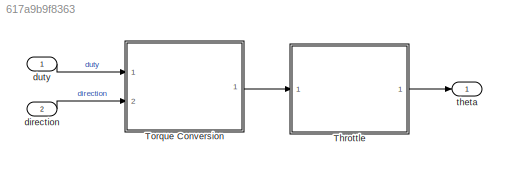
MODEL slx_617a9b9f8363
KIND model
CONFIG AbsTol = auto
CONFIG EnableMultiTasking = on
CONFIG FixedStep = auto
CONFIG MaxStep = 0.1
CONFIG MinStep = auto
CONFIG PreLoadFcn = etc_plant_data;\nFs = 1000;
CONFIG RelTol = 1e-3
CONFIG SampleTimeConstraint = Unconstrained
CONFIG Solver = ode45
CONFIG SolverName = ode45
CONFIG StartTime = 0.0
CONFIG StopTime = 20
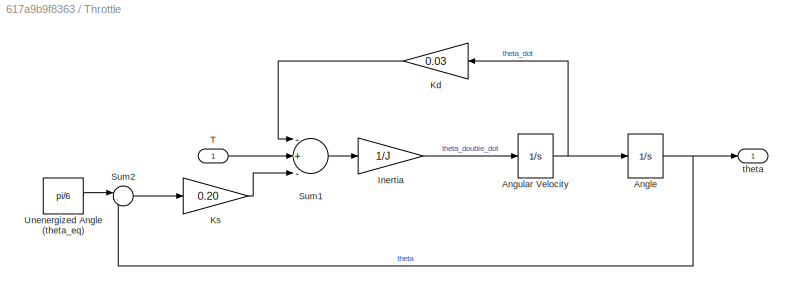
BLOCK [SubSystem] Throttle
  Ports = [1, 1]
  RequestExecContextInheritance = off
BLOCK [Integrator] Throttle/Angle
  AttributesFormatString = Initial condition: %<InitialCondition>\n%<LowerSaturationLimit> <= theta <= %<UpperSaturationLimit>
  InitialCondition = pi/6
  LimitOutput = on
  LowerSaturationLimit = 0
  Ports = [1, 1]
  UpperSaturationLimit = pi/2
BLOCK [Integrator] Throttle/Angular Velocity
  AttributesFormatString = Initial condition: %<InitialCondition>
  Ports = [1, 1]
BLOCK [Gain] Throttle/Inertia
  Gain = 1/J
BLOCK [Gain] Throttle/Kd
  Gain = 0.03
BLOCK [Gain] Throttle/Ks
  Gain = 0.20
BLOCK [Sum] Throttle/Sum1
  InputSameDT = off
  Inputs = -+-
  OutDataTypeStr = Inherit: Inherit via internal rule
  Ports = [3, 1]
BLOCK [Sum] Throttle/Sum2
  IconShape = round
  InputSameDT = off
  Inputs = |-+
  OutDataTypeStr = Inherit: Inherit via internal rule
  Ports = [2, 1]
BLOCK [Inport] Throttle/T
  IconDisplay = Port number
BLOCK [Constant] Throttle/Unenergized Angle (theta_eq)
  Value = pi/6
BLOCK [Outport] Throttle/theta
  IconDisplay = Port number
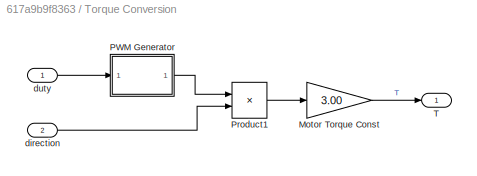
BLOCK [SubSystem] Torque Conversion
  Ports = [2, 1]
  RequestExecContextInheritance = off
BLOCK [Gain] Torque Conversion/Motor Torque Const
  Gain = 3.00
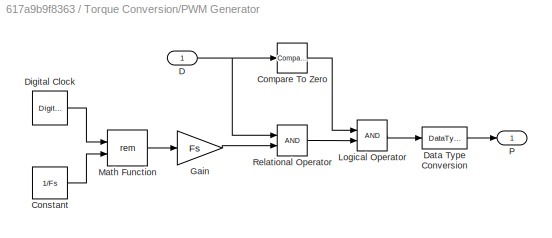
BLOCK [SubSystem] Torque Conversion/PWM Generator
  DialogController = POWERSYS.PowerSysDialog
  Ports = [1, 1]
  RequestExecContextInheritance = off
BLOCK [Reference] Torque Conversion/PWM Generator/Compare To Zero  REF=simulink/Logic and Bit
Operations/Compare
To Zero
  Ports = [1, 1]
  SourceBlock = simulink/Logic and Bit\nOperations/Compare\nTo Zero
  SourceProductBaseCode = SL
  SourceProductName = Simulink
  SourceType = Compare To Zero
BLOCK [Constant] Torque Conversion/PWM Generator/Constant
  SampleTime = 0
  Value = 1/Fs
BLOCK [Inport] Torque Conversion/PWM Generator/D
  IconDisplay = Port number
BLOCK [DataTypeConversion] Torque Conversion/PWM Generator/Data Type Conversion
  OutDataTypeStr = double
  RndMeth = Floor
  SaturateOnIntegerOverflow = off
BLOCK [DigitalClock] Torque Conversion/PWM Generator/Digital Clock
  AttributesFormatString = Ts = %<SampleTime>
  SampleTime = 1/(50*Fs)
BLOCK [Gain] Torque Conversion/PWM Generator/Gain
  Gain = Fs
BLOCK [Logic] Torque Conversion/PWM Generator/Logical Operator
  AllPortsSameDT = off
  OutDataTypeStr = boolean
  Ports = [2, 1]
BLOCK [Math] Torque Conversion/PWM Generator/Math Function
  Operator = rem
  Ports = [2, 1]
BLOCK [Outport] Torque Conversion/PWM Generator/P
  IconDisplay = Port number
BLOCK [RelationalOperator] Torque Conversion/PWM Generator/Relational Operator
  InputSameDT = off
  OutDataTypeStr = boolean
  Ports = [2, 1]
BLOCK [Product] Torque Conversion/Product1
  InputSameDT = off
  Ports = [2, 1]
  RndMeth = Floor
BLOCK [Outport] Torque Conversion/T
  IconDisplay = Port number
BLOCK [Inport] Torque Conversion/direction
  IconDisplay = Port number
  Port = 2
BLOCK [Inport] Torque Conversion/duty
  IconDisplay = Port number
BLOCK [Inport] direction
  IconDisplay = Port number
  Port = 2
BLOCK [Inport] duty
  IconDisplay = Port number
BLOCK [Outport] theta
  IconDisplay = Port number
NET Throttle/Angle:1 -> Throttle/Sum2:2, Throttle/theta:1
NET Throttle/Angular Velocity:1 -> Throttle/Angle:1, Throttle/Kd:1
LINE Throttle/Inertia:1 -> Throttle/Angular Velocity:1
LINE Throttle/Kd:1 -> Throttle/Sum1:1
LINE Throttle/Ks:1 -> Throttle/Sum1:3
LINE Throttle/Sum1:1 -> Throttle/Inertia:1
LINE Throttle/Sum2:1 -> Throttle/Ks:1
LINE Throttle/T:1 -> Throttle/Sum1:2
LINE Throttle/Unenergized Angle (theta_eq):1 -> Throttle/Sum2:1
LINE Throttle:1 -> theta:1
LINE Torque Conversion/Motor Torque Const:1 -> Torque Conversion/T:1
LINE Torque Conversion/PWM Generator/Compare To Zero:1 -> Torque Conversion/PWM Generator/Logical Operator:1
LINE Torque Conversion/PWM Generator/Constant:1 -> Torque Conversion/PWM Generator/Math Function:2
NET Torque Conversion/PWM Generator/D:1 -> Torque Conversion/PWM Generator/Compare To Zero:1, Torque Conversion/PWM Generator/Relational Operator:1
LINE Torque Conversion/PWM Generator/Data Type Conversion:1 -> Torque Conversion/PWM Generator/P:1
LINE Torque Conversion/PWM Generator/Digital Clock:1 -> Torque Conversion/PWM Generator/Math Function:1
LINE Torque Conversion/PWM Generator/Gain:1 -> Torque Conversion/PWM Generator/Relational Operator:2
LINE Torque Conversion/PWM Generator/Logical Operator:1 -> Torque Conversion/PWM Generator/Data Type Conversion:1
LINE Torque Conversion/PWM Generator/Math Function:1 -> Torque Conversion/PWM Generator/Gain:1
LINE Torque Conversion/PWM Generator/Relational Operator:1 -> Torque Conversion/PWM Generator/Logical Operator:2
LINE Torque Conversion/PWM Generator:1 -> Torque Conversion/Product1:1
LINE Torque Conversion/Product1:1 -> Torque Conversion/Motor Torque Const:1
LINE Torque Conversion/direction:1 -> Torque Conversion/Product1:2
LINE Torque Conversion/duty:1 -> Torque Conversion/PWM Generator:1
LINE Torque Conversion:1 -> Throttle:1
LINE direction:1 -> Torque Conversion:2
LINE duty:1 -> Torque Conversion:1
note: NET lines group one-source signal fan-out (src -> all destinations, sorted); 1:1 wires keep LINE
